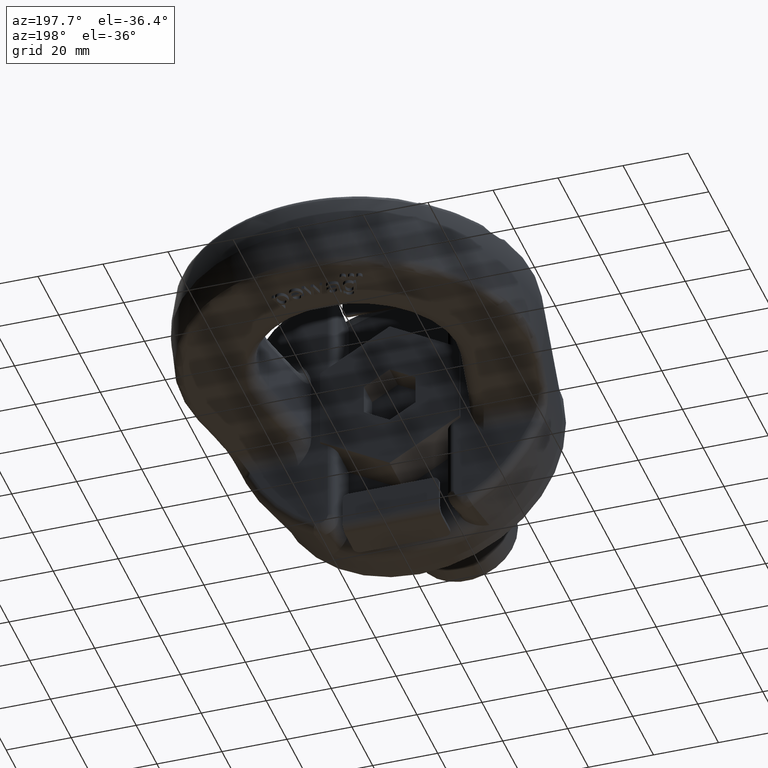
[diagram: clean part render]
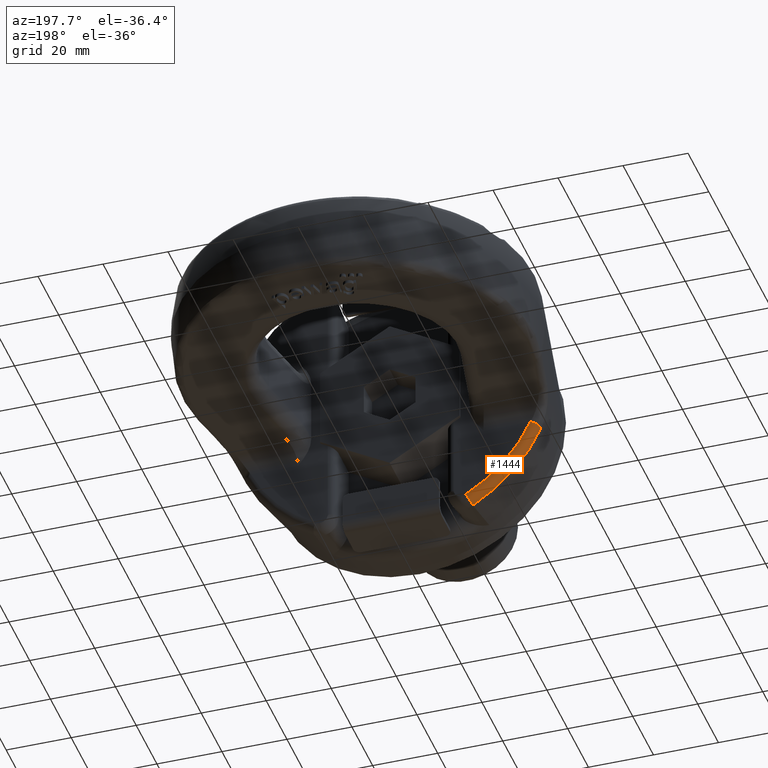
[diagram: same view with one face highlighted and labeled with its STEP entity id]
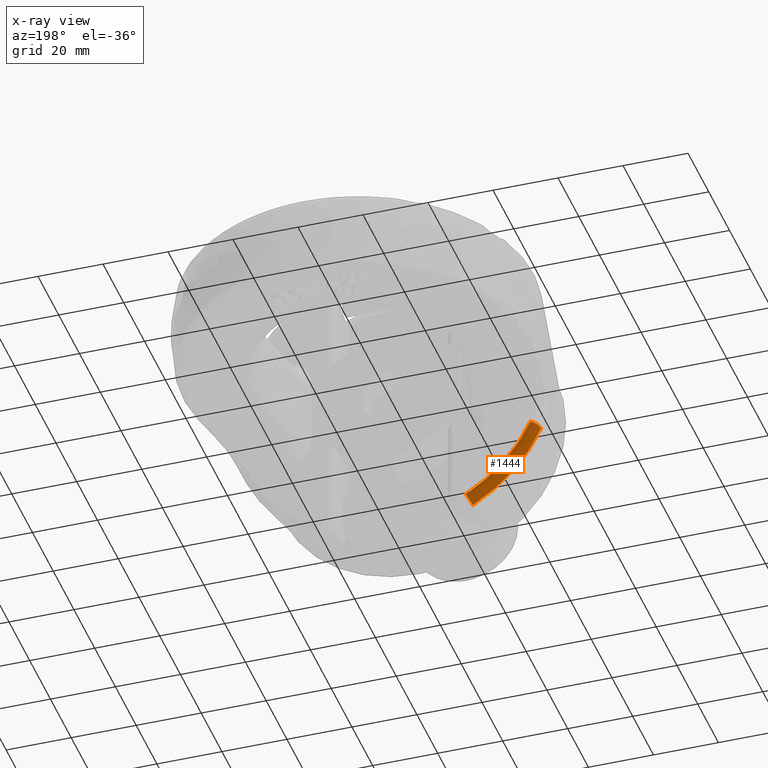
[diagram: x-ray of the same camera — body ghosted, the highlighted face saturated]
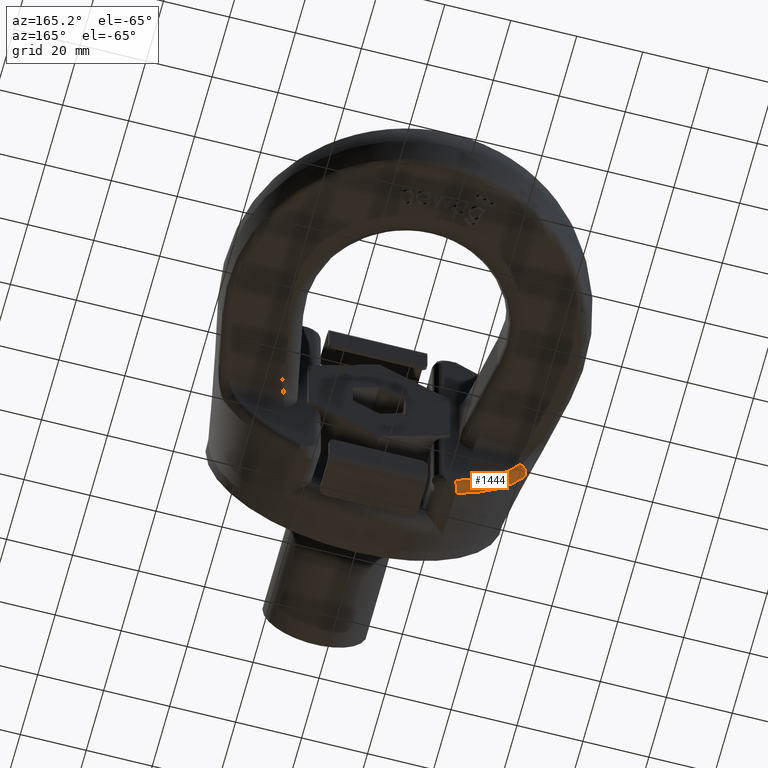
[diagram: same view with one face highlighted and labeled with its STEP entity id]
A machine part, auxiliary view. The second image highlights one B-rep face of the part: STEP entity #1444.
The next image is the same camera in x-ray: the body ghosted, the highlighted face saturated — about 0% of this face is hidden behind the body in this view.
A second angle (auxiliary view) of the same face is appended — the face is thin or edge-on in the first view.
In plain terms, the highlighted toroidal blend (fillet) surface has major radius 46.8966 mm and minor (blend) radius 2.5 mm.
Its self-contained STEP definition (entity closure, byte-faithful):
#1022=TOROIDAL_SURFACE('',#5277,46.8966291567478,2.5);
#1212=FACE_OUTER_BOUND('',#1975,.T.);
#1444=ADVANCED_FACE('',(#1212),#1022,.T.);
#1671=CIRCLE('',#5124,46.8966291567478);
#1677=CIRCLE('',#5135,49.3492281113386);
#1722=CIRCLE('',#5275,2.5);
#1723=CIRCLE('',#5276,2.5);
#1975=EDGE_LOOP('',(#3417,#3418,#3419,#3420));
#3417=ORIENTED_EDGE('',*,*,#4655,.T.);
#3418=ORIENTED_EDGE('',*,*,#4338,.F.);
#3419=ORIENTED_EDGE('',*,*,#4656,.F.);
#3420=ORIENTED_EDGE('',*,*,#4375,.F.);
#3950=VERTEX_POINT('',#6610);
#3951=VERTEX_POINT('',#6612);
#3985=VERTEX_POINT('',#6778);
#3986=VERTEX_POINT('',#6780);
#4338=EDGE_CURVE('',#3950,#3951,#1671,.T.);
#4375=EDGE_CURVE('',#3985,#3986,#1677,.T.);
#4655=EDGE_CURVE('',#3985,#3951,#1722,.T.);
#4656=EDGE_CURVE('',#3986,#3950,#1723,.T.);
#5124=AXIS2_PLACEMENT_3D('',#6611,#5442,#5443);
#5135=AXIS2_PLACEMENT_3D('',#6779,#5483,#5484);
#5275=AXIS2_PLACEMENT_3D('',#8531,#5905,#5906);
#5276=AXIS2_PLACEMENT_3D('',#8550,#5907,#5908);
#5277=AXIS2_PLACEMENT_3D('',#8551,#5909,#5910);
#5442=DIRECTION('',(-9.15341943153859E-16,1.,-2.14456445946996E-30));
#5443=DIRECTION('',(1.,8.87768783643011E-16,2.34291072916505E-15));
#5483=DIRECTION('',(9.15341943153859E-16,-1.,2.14456445946996E-30));
#5484=DIRECTION('',(-1.,-9.13951688841796E-16,-2.34291072916505E-15));
#5905=DIRECTION('',(0.399815516320585,-1.43435295820542E-15,-0.916595632167917));
#5906=DIRECTION('',(-0.916595632167919,0.,-0.399815516320585));
#5907=DIRECTION('',(0.87048661623783,1.52417208517112E-15,-0.492192087452463));
#5908=DIRECTION('',(-0.492192087452463,0.,-0.870486616237831));
#5909=DIRECTION('',(-9.15341943153859E-16,1.,-2.14456445946996E-30));
#5910=DIRECTION('',(1.,9.13074660059789E-16,2.34291072916505E-15));
#6610=CARTESIAN_POINT('',(-23.0821497991437,28.,-40.8228880276178));
#6611=CARTESIAN_POINT('',(1.08608487304983E-13,28.,2.54459990185229E-28));
#6612=CARTESIAN_POINT('',(-42.9852454484736,28.,-18.7500000000001));
#6778=CARTESIAN_POINT('',(-45.2332869377111,25.0154813027961,-19.7305871173572));
#6779=CARTESIAN_POINT('',(9.94468351203209E-14,25.0154813027962,2.32995056984907E-28));
#6780=CARTESIAN_POINT('',(-24.2892995982875,25.0154813027961,-42.957842592588));
#8531=CARTESIAN_POINT('',(-42.9852454484736,25.5,-18.7500000000001));
#8550=CARTESIAN_POINT('',(-23.0821497991437,25.5,-40.8228880276178));
#8551=CARTESIAN_POINT('',(1.10896842162867E-13,25.5,2.59821401333904E-28));